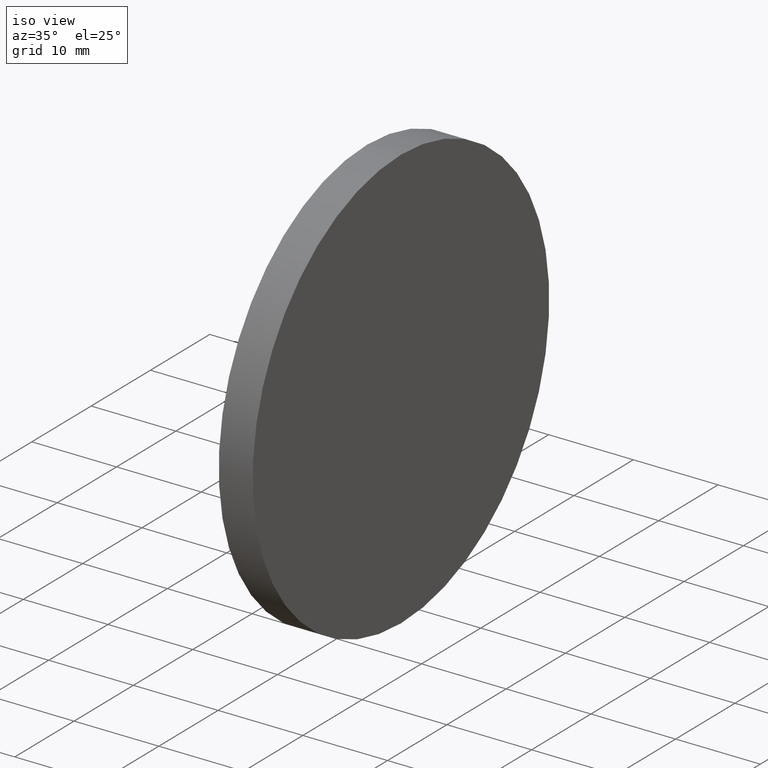
[diagram: clean part render]
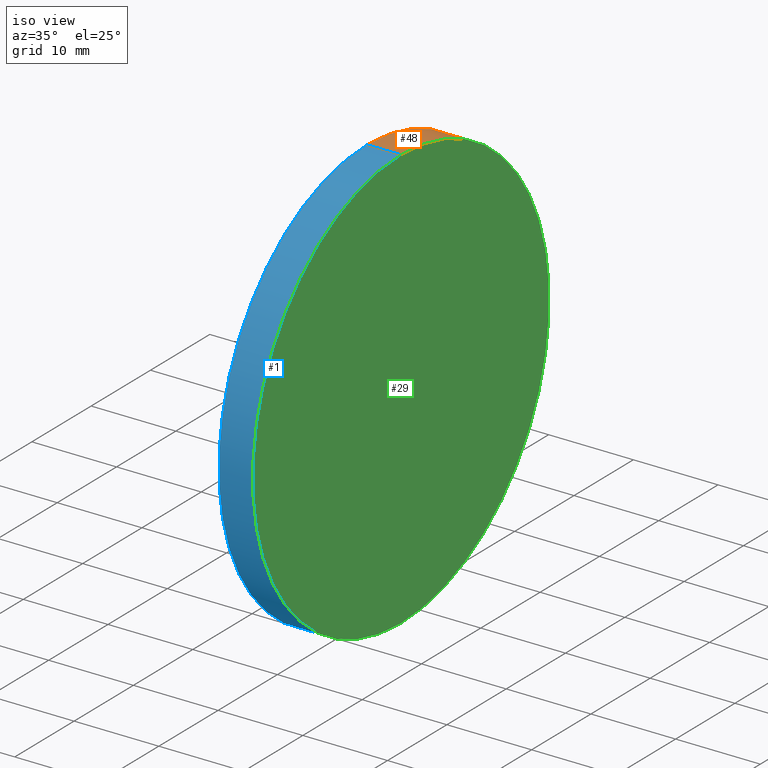
[diagram: same view with three faces highlighted in distinct colors, each labeled with its STEP entity id]
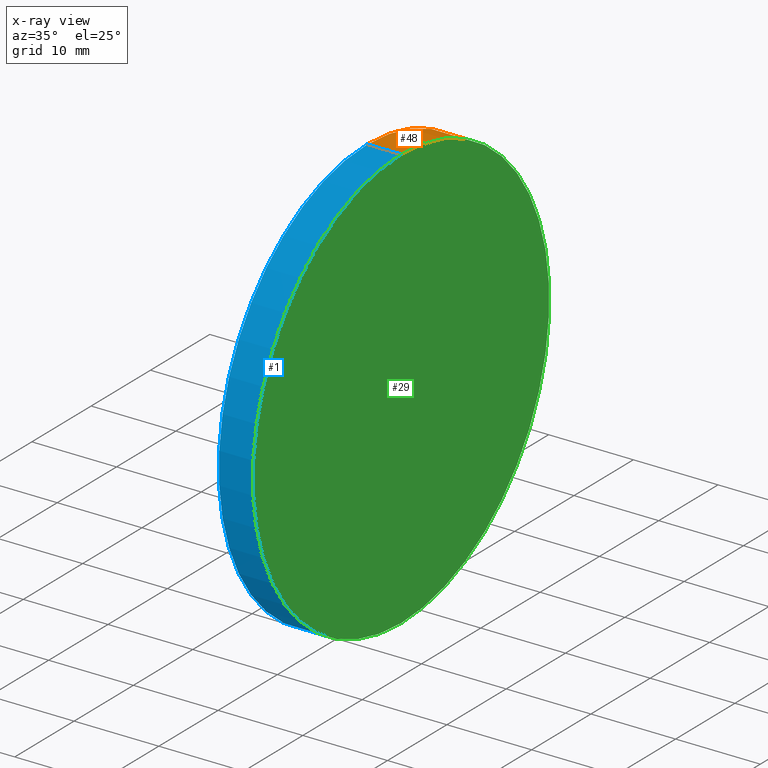
[diagram: x-ray of the same camera — body ghosted, the three highlighted faces saturated]
A machine part, iso view with three faces highlighted in distinct colors.
The next image is the same camera in x-ray (body ghosted, the three faces saturated) — at least one of them is partly hidden behind the body in this view.
Their STEP definitions:

[orange] entity #48 — the highlighted cylindrical surface (partial cylindrical patch) has radius 25 mm, axis along (-1, -0, -0).
#4 = EDGE_CURVE ( 'NONE', #64, #19, #6, .T. ) ;
#6 = LINE ( 'NONE', #132, #49 ) ;
#7 = CYLINDRICAL_SURFACE ( 'NONE', #57, 24.99999999999999300 ) ;
#10 = ORIENTED_EDGE ( 'NONE', *, *, #84, .F. ) ;
#14 = CARTESIAN_POINT ( 'NONE',  ( 520.3697231656161600, 154.5863586980308400, 24.99999999999999300 ) ) ;
#15 = CARTESIAN_POINT ( 'NONE',  ( 524.3697231656161600, 154.5863586980308400, 24.99999999999999300 ) ) ;
#19 = VERTEX_POINT ( 'NONE', #134 ) ;
#20 = CIRCLE ( 'NONE', #68, 24.99999999999999300 ) ;
#31 = VERTEX_POINT ( 'NONE', #14 ) ;
#34 = DIRECTION ( 'NONE',  ( -1.000000000000000000, -0.0000000000000000000, -0.0000000000000000000 ) ) ;
#35 = EDGE_CURVE ( 'NONE', #114, #31, #87, .T. ) ;
#42 = EDGE_LOOP ( 'NONE', ( #91, #80, #10, #56 ) ) ;
#43 = DIRECTION ( 'NONE',  ( -1.000000000000000000, -0.0000000000000000000, -0.0000000000000000000 ) ) ;
#47 = AXIS2_PLACEMENT_3D ( 'NONE', #55, #97, #96 ) ;
#48 = ADVANCED_FACE ( 'NONE', ( #117 ), #7, .T. ) ;
#49 = VECTOR ( 'NONE', #34, 1000.000000000000000 ) ;
#52 = DIRECTION ( 'NONE',  ( 0.0000000000000000000, 0.0000000000000000000, 1.000000000000000000 ) ) ;
#53 = CARTESIAN_POINT ( 'NONE',  ( 524.3697231656161600, 154.5863586980308400, 0.0000000000000000000 ) ) ;
#54 = DIRECTION ( 'NONE',  ( -1.000000000000000000, -0.0000000000000000000, -0.0000000000000000000 ) ) ;
#55 = CARTESIAN_POINT ( 'NONE',  ( 520.3697231656161600, 154.5863586980308400, 0.0000000000000000000 ) ) ;
#56 = ORIENTED_EDGE ( 'NONE', *, *, #35, .F. ) ;
#57 = AXIS2_PLACEMENT_3D ( 'NONE', #122, #43, #111 ) ;
#59 = VECTOR ( 'NONE', #88, 1000.000000000000000 ) ;
#64 = VERTEX_POINT ( 'NONE', #137 ) ;
#68 = AXIS2_PLACEMENT_3D ( 'NONE', #53, #54, #52 ) ;
#76 = CARTESIAN_POINT ( 'NONE',  ( 500.7375676965768300, 154.5863586980308400, 24.99999999999999300 ) ) ;
#80 = ORIENTED_EDGE ( 'NONE', *, *, #4, .T. ) ;
#84 = EDGE_CURVE ( 'NONE', #31, #19, #105, .T. ) ;
#85 = EDGE_CURVE ( 'NONE', #114, #64, #20, .T. ) ;
#87 = LINE ( 'NONE', #76, #59 ) ;
#88 = DIRECTION ( 'NONE',  ( -1.000000000000000000, -0.0000000000000000000, -0.0000000000000000000 ) ) ;
#91 = ORIENTED_EDGE ( 'NONE', *, *, #85, .T. ) ;
#96 = DIRECTION ( 'NONE',  ( 0.0000000000000000000, 0.0000000000000000000, 1.000000000000000000 ) ) ;
#97 = DIRECTION ( 'NONE',  ( -1.000000000000000000, -0.0000000000000000000, -0.0000000000000000000 ) ) ;
#105 = CIRCLE ( 'NONE', #47, 24.99999999999999300 ) ;
#111 = DIRECTION ( 'NONE',  ( 0.0000000000000000000, 0.0000000000000000000, 1.000000000000000000 ) ) ;
#114 = VERTEX_POINT ( 'NONE', #15 ) ;
#117 = FACE_OUTER_BOUND ( 'NONE', #42, .T. ) ;
#122 = CARTESIAN_POINT ( 'NONE',  ( 500.7375676965768300, 154.5863586980308400, 0.0000000000000000000 ) ) ;
#132 = CARTESIAN_POINT ( 'NONE',  ( 500.7375676965768300, 154.5863586980308400, -24.99999999999999300 ) ) ;
#134 = CARTESIAN_POINT ( 'NONE',  ( 520.3697231656161600, 154.5863586980308400, -24.99999999999999300 ) ) ;
#137 = CARTESIAN_POINT ( 'NONE',  ( 524.3697231656161600, 154.5863586980308400, -24.99999999999999300 ) ) ;

[blue] entity #1 — the highlighted cylindrical surface (partial cylindrical patch) has radius 25 mm, axis along (-1, -0, -0).
#1 = ADVANCED_FACE ( 'NONE', ( #28 ), #8, .T. ) ;
#3 = DIRECTION ( 'NONE',  ( -1.000000000000000000, -0.0000000000000000000, -0.0000000000000000000 ) ) ;
#4 = EDGE_CURVE ( 'NONE', #64, #19, #6, .T. ) ;
#6 = LINE ( 'NONE', #132, #49 ) ;
#8 = CYLINDRICAL_SURFACE ( 'NONE', #120, 24.99999999999999300 ) ;
#12 = CIRCLE ( 'NONE', #61, 24.99999999999999300 ) ;
#14 = CARTESIAN_POINT ( 'NONE',  ( 520.3697231656161600, 154.5863586980308400, 24.99999999999999300 ) ) ;
#15 = CARTESIAN_POINT ( 'NONE',  ( 524.3697231656161600, 154.5863586980308400, 24.99999999999999300 ) ) ;
#19 = VERTEX_POINT ( 'NONE', #134 ) ;
#21 = DIRECTION ( 'NONE',  ( -1.000000000000000000, -0.0000000000000000000, -0.0000000000000000000 ) ) ;
#24 = DIRECTION ( 'NONE',  ( 0.0000000000000000000, 0.0000000000000000000, 1.000000000000000000 ) ) ;
#25 = CARTESIAN_POINT ( 'NONE',  ( 524.3697231656161600, 154.5863586980308400, 0.0000000000000000000 ) ) ;
#28 = FACE_OUTER_BOUND ( 'NONE', #127, .T. ) ;
#31 = VERTEX_POINT ( 'NONE', #14 ) ;
#32 = DIRECTION ( 'NONE',  ( -1.000000000000000000, -0.0000000000000000000, -0.0000000000000000000 ) ) ;
#34 = DIRECTION ( 'NONE',  ( -1.000000000000000000, -0.0000000000000000000, -0.0000000000000000000 ) ) ;
#35 = EDGE_CURVE ( 'NONE', #114, #31, #87, .T. ) ;
#37 = EDGE_CURVE ( 'NONE', #64, #114, #46, .T. ) ;
#41 = DIRECTION ( 'NONE',  ( 0.0000000000000000000, 0.0000000000000000000, 1.000000000000000000 ) ) ;
#46 = CIRCLE ( 'NONE', #115, 24.99999999999999300 ) ;
#49 = VECTOR ( 'NONE', #34, 1000.000000000000000 ) ;
#59 = VECTOR ( 'NONE', #88, 1000.000000000000000 ) ;
#61 = AXIS2_PLACEMENT_3D ( 'NONE', #121, #21, #41 ) ;
#62 = EDGE_CURVE ( 'NONE', #19, #31, #12, .T. ) ;
#64 = VERTEX_POINT ( 'NONE', #137 ) ;
#69 = ORIENTED_EDGE ( 'NONE', *, *, #62, .F. ) ;
#74 = DIRECTION ( 'NONE',  ( 0.0000000000000000000, 0.0000000000000000000, 1.000000000000000000 ) ) ;
#76 = CARTESIAN_POINT ( 'NONE',  ( 500.7375676965768300, 154.5863586980308400, 24.99999999999999300 ) ) ;
#87 = LINE ( 'NONE', #76, #59 ) ;
#88 = DIRECTION ( 'NONE',  ( -1.000000000000000000, -0.0000000000000000000, -0.0000000000000000000 ) ) ;
#102 = ORIENTED_EDGE ( 'NONE', *, *, #35, .T. ) ;
#106 = ORIENTED_EDGE ( 'NONE', *, *, #37, .T. ) ;
#114 = VERTEX_POINT ( 'NONE', #15 ) ;
#115 = AXIS2_PLACEMENT_3D ( 'NONE', #25, #3, #24 ) ;
#116 = ORIENTED_EDGE ( 'NONE', *, *, #4, .F. ) ;
#120 = AXIS2_PLACEMENT_3D ( 'NONE', #133, #32, #74 ) ;
#121 = CARTESIAN_POINT ( 'NONE',  ( 520.3697231656161600, 154.5863586980308400, 0.0000000000000000000 ) ) ;
#127 = EDGE_LOOP ( 'NONE', ( #116, #106, #102, #69 ) ) ;
#132 = CARTESIAN_POINT ( 'NONE',  ( 500.7375676965768300, 154.5863586980308400, -24.99999999999999300 ) ) ;
#133 = CARTESIAN_POINT ( 'NONE',  ( 500.7375676965768300, 154.5863586980308400, 0.0000000000000000000 ) ) ;
#134 = CARTESIAN_POINT ( 'NONE',  ( 520.3697231656161600, 154.5863586980308400, -24.99999999999999300 ) ) ;
#137 = CARTESIAN_POINT ( 'NONE',  ( 524.3697231656161600, 154.5863586980308400, -24.99999999999999300 ) ) ;

[green] entity #29 — the highlighted planar face has unit normal (-1, 0, -0).
#3 = DIRECTION ( 'NONE',  ( -1.000000000000000000, -0.0000000000000000000, -0.0000000000000000000 ) ) ;
#15 = CARTESIAN_POINT ( 'NONE',  ( 524.3697231656161600, 154.5863586980308400, 24.99999999999999300 ) ) ;
#18 = AXIS2_PLACEMENT_3D ( 'NONE', #109, #89, #33 ) ;
#20 = CIRCLE ( 'NONE', #68, 24.99999999999999300 ) ;
#23 = PLANE ( 'NONE',  #18 ) ;
#24 = DIRECTION ( 'NONE',  ( 0.0000000000000000000, 0.0000000000000000000, 1.000000000000000000 ) ) ;
#25 = CARTESIAN_POINT ( 'NONE',  ( 524.3697231656161600, 154.5863586980308400, 0.0000000000000000000 ) ) ;
#26 = EDGE_LOOP ( 'NONE', ( #119, #135 ) ) ;
#29 = ADVANCED_FACE ( 'NONE', ( #140 ), #23, .F. ) ;
#33 = DIRECTION ( 'NONE',  ( -0.0000000000000000000, 0.0000000000000000000, 1.000000000000000000 ) ) ;
#37 = EDGE_CURVE ( 'NONE', #64, #114, #46, .T. ) ;
#46 = CIRCLE ( 'NONE', #115, 24.99999999999999300 ) ;
#52 = DIRECTION ( 'NONE',  ( 0.0000000000000000000, 0.0000000000000000000, 1.000000000000000000 ) ) ;
#53 = CARTESIAN_POINT ( 'NONE',  ( 524.3697231656161600, 154.5863586980308400, 0.0000000000000000000 ) ) ;
#54 = DIRECTION ( 'NONE',  ( -1.000000000000000000, -0.0000000000000000000, -0.0000000000000000000 ) ) ;
#64 = VERTEX_POINT ( 'NONE', #137 ) ;
#68 = AXIS2_PLACEMENT_3D ( 'NONE', #53, #54, #52 ) ;
#85 = EDGE_CURVE ( 'NONE', #114, #64, #20, .T. ) ;
#89 = DIRECTION ( 'NONE',  ( -1.000000000000000000, 0.0000000000000000000, -0.0000000000000000000 ) ) ;
#109 = CARTESIAN_POINT ( 'NONE',  ( 524.3697231656161600, 179.5863586980308400, 0.0000000000000000000 ) ) ;
#114 = VERTEX_POINT ( 'NONE', #15 ) ;
#115 = AXIS2_PLACEMENT_3D ( 'NONE', #25, #3, #24 ) ;
#119 = ORIENTED_EDGE ( 'NONE', *, *, #85, .F. ) ;
#135 = ORIENTED_EDGE ( 'NONE', *, *, #37, .F. ) ;
#137 = CARTESIAN_POINT ( 'NONE',  ( 524.3697231656161600, 154.5863586980308400, -24.99999999999999300 ) ) ;
#140 = FACE_OUTER_BOUND ( 'NONE', #26, .T. ) ;